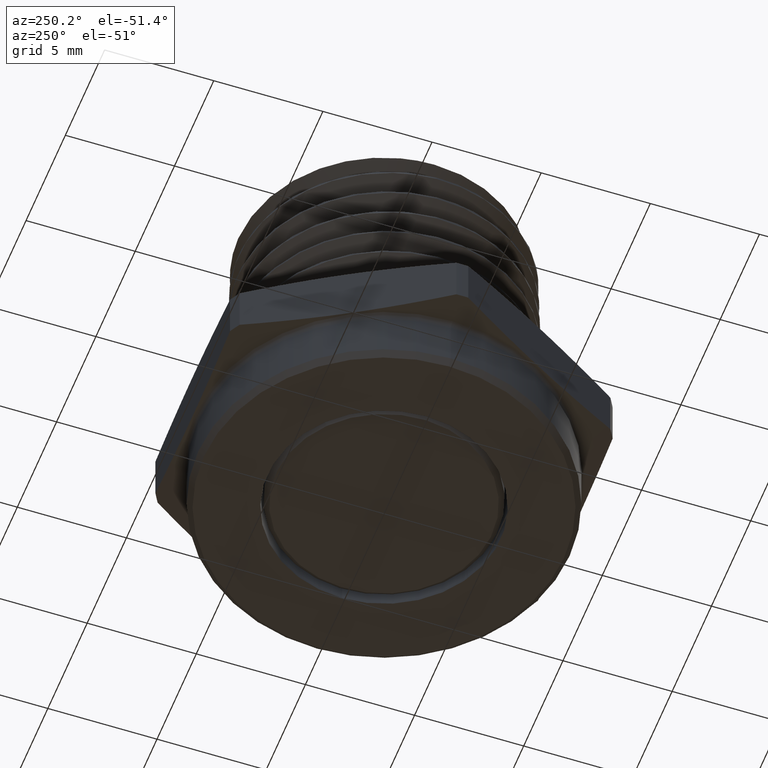
[diagram: clean part render]
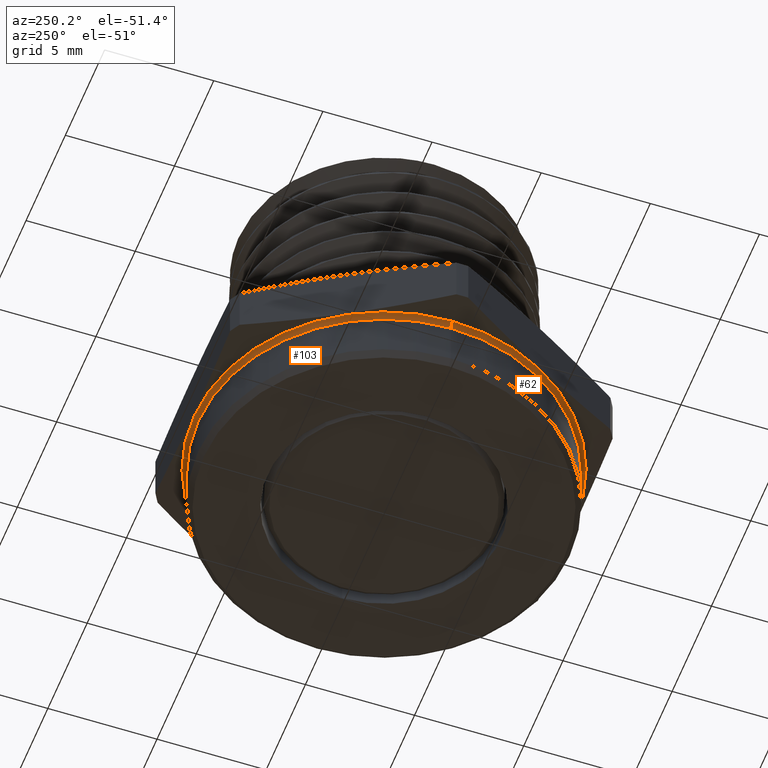
[diagram: same view with one multi-face feature highlighted, each face labeled with its STEP entity id]
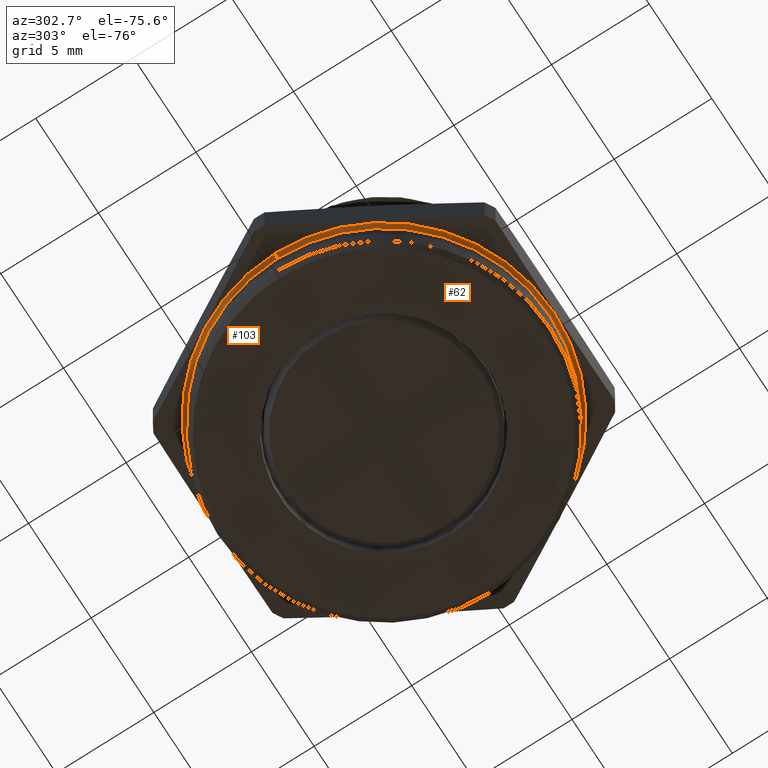
[diagram: same view with one multi-face feature highlighted, each face labeled with its STEP entity id]
A machine part, auxiliary view. The highlighted faces form ONE feature: a constant-radius fillet chain: 2 tangent blend faces with common blend radius 0.254 mm. The faces share edges in the B-rep.
A second angle (auxiliary view) of the same feature is appended — it is thin or edge-on in the first view.
Their STEP definitions:
[1] entity #103 (Torus):
#103 = ADVANCED_FACE ( 'NONE', ( #943 ), #1281, .F. ) ;
#157 = EDGE_CURVE ( 'NONE', #565, #571, #2000, .T. ) ;
#222 = EDGE_CURVE ( 'NONE', #568, #565, #2044, .T. ) ;
#224 = EDGE_CURVE ( 'NONE', #571, #570, #2056, .T. ) ;
#284 = EDGE_CURVE ( 'NONE', #568, #570, #2096, .T. ) ;
#397 = ORIENTED_EDGE ( 'NONE', *, *, #157, .F. ) ;
#398 = ORIENTED_EDGE ( 'NONE', *, *, #222, .F. ) ;
#399 = ORIENTED_EDGE ( 'NONE', *, *, #284, .T. ) ;
#400 = ORIENTED_EDGE ( 'NONE', *, *, #224, .F. ) ;
#565 = VERTEX_POINT ( 'NONE', #4100 ) ;
#568 = VERTEX_POINT ( 'NONE', #4103 ) ;
#570 = VERTEX_POINT ( 'NONE', #4098 ) ;
#571 = VERTEX_POINT ( 'NONE', #4105 ) ;
#702 = EDGE_LOOP ( 'NONE', ( #397, #398, #399, #400 ) ) ;
#834 = AXIS2_PLACEMENT_3D ( 'NONE', #1025, #1027, #1030 ) ;
#868 = AXIS2_PLACEMENT_3D ( 'NONE', #1804, #1805, #1806 ) ;
#885 = AXIS2_PLACEMENT_3D ( 'NONE', #3355, #3356, #3357 ) ;
#886 = AXIS2_PLACEMENT_3D ( 'NONE', #3361, #3362, #3363 ) ;
#943 = FACE_OUTER_BOUND ( 'NONE', #702, .T. ) ;
#1025 = CARTESIAN_POINT ( 'NONE',  ( 2.939123158941462000E-018, 0.0000000000000000000, -0.008097840331950189800 ) ) ;
#1027 = DIRECTION ( 'NONE',  ( -6.123233995736756200E-017, -0.0000000000000000000, -1.000000000000000000 ) ) ;
#1030 = DIRECTION ( 'NONE',  ( -1.000000000000000000, 0.0000000000000000000, 6.123233995736756200E-017 ) ) ;
#1281 = TOROIDAL_SURFACE ( 'NONE', #834, 0.3450000000000001400, 0.01000000000000000000 ) ;
#1804 = CARTESIAN_POINT ( 'NONE',  ( 0.3450000000000001400, 4.225031457058370300E-017, -0.008097840331950210600 ) ) ;
#1805 = DIRECTION ( 'NONE',  ( -1.224646799147353200E-016, 1.000000000000000000, 7.498798913309275700E-033 ) ) ;
#1806 = DIRECTION ( 'NONE',  ( -1.000000000000000000, -1.224646799147346800E-016, 0.0000000000000000000 ) ) ;
#2000 = CIRCLE ( 'NONE', #868, 0.01000000000000003000 ) ;
#2044 = CIRCLE ( 'NONE', #885, 0.3350000000000001300 ) ;
#2056 = CIRCLE ( 'NONE', #886, 0.3429208830918225600 ) ;
#2096 = CIRCLE ( 'NONE', #3701, 0.01000000000000000000 ) ;
#3355 = CARTESIAN_POINT ( 'NONE',  ( 0.0000000000000000000, 0.0000000000000000000, -0.008097840331950181100 ) ) ;
#3356 = DIRECTION ( 'NONE',  ( -6.123233995736756200E-017, -0.0000000000000000000, -1.000000000000000000 ) ) ;
#3357 = DIRECTION ( 'NONE',  ( -1.000000000000000000, 0.0000000000000000000, 6.052368456112520800E-017 ) ) ;
#3361 = CARTESIAN_POINT ( 'NONE',  ( 3.538065823107628800E-018, 0.0000000000000000000, 0.001683635675388010700 ) ) ;
#3362 = DIRECTION ( 'NONE',  ( 1.224646799147351200E-016, 0.0000000000000000000, 1.000000000000000000 ) ) ;
#3363 = DIRECTION ( 'NONE',  ( 1.000000000000000000, 0.0000000000000000000, -1.221412310369414400E-016 ) ) ;
#3701 = AXIS2_PLACEMENT_3D ( 'NONE', #4067, #4068, #4069 ) ;
#4067 = CARTESIAN_POINT ( 'NONE',  ( -0.3450000000000001400, 0.0000000000000000000, -0.008097840331950169000 ) ) ;
#4068 = DIRECTION ( 'NONE',  ( 0.0000000000000000000, -1.000000000000000000, 0.0000000000000000000 ) ) ;
#4069 = DIRECTION ( 'NONE',  ( 0.0000000000000000000, 0.0000000000000000000, -1.000000000000000000 ) ) ;
#4098 = CARTESIAN_POINT ( 'NONE',  ( -0.3429208830918230600, 4.199569618391848700E-017, 0.001683635675388055500 ) ) ;
#4100 = CARTESIAN_POINT ( 'NONE',  ( 0.3350000000000001300, 0.0000000000000000000, -0.008097840331950201900 ) ) ;
#4103 = CARTESIAN_POINT ( 'NONE',  ( -0.3350000000000001300, 4.102566777143634000E-017, -0.008097840331950160300 ) ) ;
#4105 = CARTESIAN_POINT ( 'NONE',  ( 0.3429208830918230600, 0.0000000000000000000, 0.001683635675387967900 ) ) ;
[2] entity #62 (Torus):
#62 = ADVANCED_FACE ( 'NONE', ( #891 ), #752, .F. ) ;
#156 = EDGE_CURVE ( 'NONE', #565, #568, #1999, .T. ) ;
#157 = EDGE_CURVE ( 'NONE', #565, #571, #2000, .T. ) ;
#284 = EDGE_CURVE ( 'NONE', #568, #570, #2096, .T. ) ;
#285 = EDGE_CURVE ( 'NONE', #570, #571, #2109, .T. ) ;
#314 = ORIENTED_EDGE ( 'NONE', *, *, #284, .F. ) ;
#334 = ORIENTED_EDGE ( 'NONE', *, *, #285, .F. ) ;
#338 = ORIENTED_EDGE ( 'NONE', *, *, #157, .T. ) ;
#565 = VERTEX_POINT ( 'NONE', #4100 ) ;
#568 = VERTEX_POINT ( 'NONE', #4103 ) ;
#570 = VERTEX_POINT ( 'NONE', #4098 ) ;
#571 = VERTEX_POINT ( 'NONE', #4105 ) ;
#663 = EDGE_LOOP ( 'NONE', ( #5320, #338, #334, #314 ) ) ;
#752 = TOROIDAL_SURFACE ( 'NONE', #793, 0.3450000000000001400, 0.01000000000000000000 ) ;
#793 = AXIS2_PLACEMENT_3D ( 'NONE', #5422, #5420, #5424 ) ;
#867 = AXIS2_PLACEMENT_3D ( 'NONE', #1799, #1800, #1801 ) ;
#868 = AXIS2_PLACEMENT_3D ( 'NONE', #1804, #1805, #1806 ) ;
#891 = FACE_OUTER_BOUND ( 'NONE', #663, .T. ) ;
#1799 = CARTESIAN_POINT ( 'NONE',  ( 0.0000000000000000000, 0.0000000000000000000, -0.008097840331950181100 ) ) ;
#1800 = DIRECTION ( 'NONE',  ( -6.123233995736756200E-017, -0.0000000000000000000, -1.000000000000000000 ) ) ;
#1801 = DIRECTION ( 'NONE',  ( -1.000000000000000000, 0.0000000000000000000, 6.052368456112520800E-017 ) ) ;
#1804 = CARTESIAN_POINT ( 'NONE',  ( 0.3450000000000001400, 4.225031457058370300E-017, -0.008097840331950210600 ) ) ;
#1805 = DIRECTION ( 'NONE',  ( -1.224646799147353200E-016, 1.000000000000000000, 7.498798913309275700E-033 ) ) ;
#1806 = DIRECTION ( 'NONE',  ( -1.000000000000000000, -1.224646799147346800E-016, 0.0000000000000000000 ) ) ;
#1999 = CIRCLE ( 'NONE', #867, 0.3350000000000001300 ) ;
#2000 = CIRCLE ( 'NONE', #868, 0.01000000000000003000 ) ;
#2096 = CIRCLE ( 'NONE', #3701, 0.01000000000000000000 ) ;
#2109 = CIRCLE ( 'NONE', #3702, 0.3429208830918225600 ) ;
#3701 = AXIS2_PLACEMENT_3D ( 'NONE', #4067, #4068, #4069 ) ;
#3702 = AXIS2_PLACEMENT_3D ( 'NONE', #4072, #4073, #4074 ) ;
#4067 = CARTESIAN_POINT ( 'NONE',  ( -0.3450000000000001400, 0.0000000000000000000, -0.008097840331950169000 ) ) ;
#4068 = DIRECTION ( 'NONE',  ( 0.0000000000000000000, -1.000000000000000000, 0.0000000000000000000 ) ) ;
#4069 = DIRECTION ( 'NONE',  ( 0.0000000000000000000, 0.0000000000000000000, -1.000000000000000000 ) ) ;
#4072 = CARTESIAN_POINT ( 'NONE',  ( 3.538065823107628800E-018, 0.0000000000000000000, 0.001683635675388010700 ) ) ;
#4073 = DIRECTION ( 'NONE',  ( 1.224646799147351200E-016, 0.0000000000000000000, 1.000000000000000000 ) ) ;
#4074 = DIRECTION ( 'NONE',  ( 1.000000000000000000, 0.0000000000000000000, -1.221412310369414400E-016 ) ) ;
#4098 = CARTESIAN_POINT ( 'NONE',  ( -0.3429208830918230600, 4.199569618391848700E-017, 0.001683635675388055500 ) ) ;
#4100 = CARTESIAN_POINT ( 'NONE',  ( 0.3350000000000001300, 0.0000000000000000000, -0.008097840331950201900 ) ) ;
#4103 = CARTESIAN_POINT ( 'NONE',  ( -0.3350000000000001300, 4.102566777143634000E-017, -0.008097840331950160300 ) ) ;
#4105 = CARTESIAN_POINT ( 'NONE',  ( 0.3429208830918230600, 0.0000000000000000000, 0.001683635675387967900 ) ) ;
#5320 = ORIENTED_EDGE ( 'NONE', *, *, #156, .F. ) ;
#5420 = DIRECTION ( 'NONE',  ( -6.123233995736756200E-017, -0.0000000000000000000, -1.000000000000000000 ) ) ;
#5422 = CARTESIAN_POINT ( 'NONE',  ( 2.939123158941462000E-018, 0.0000000000000000000, -0.008097840331950189800 ) ) ;
#5424 = DIRECTION ( 'NONE',  ( -1.000000000000000000, 0.0000000000000000000, 6.123233995736756200E-017 ) ) ;